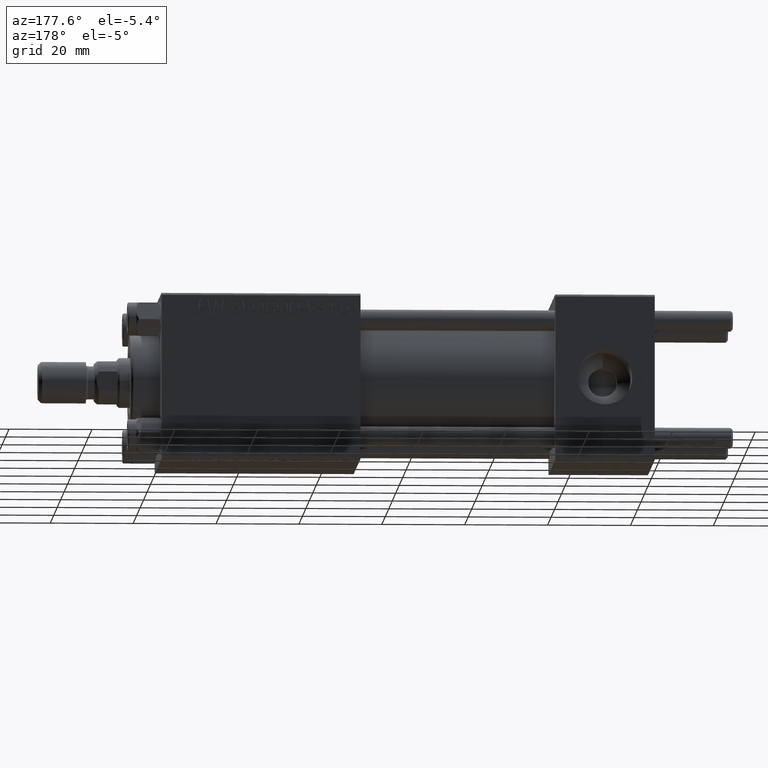
[diagram: clean part render]
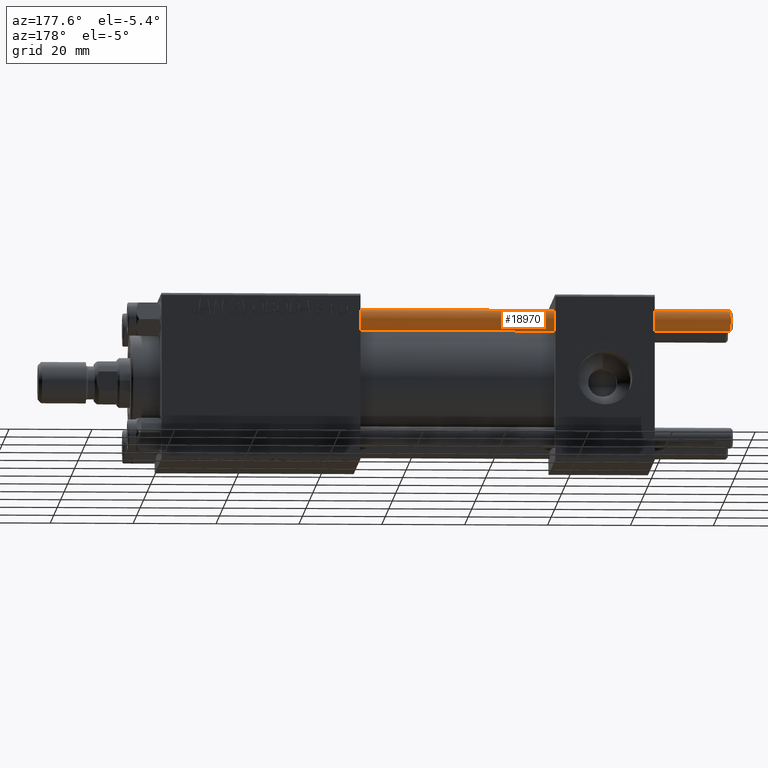
[diagram: same view with one face highlighted and labeled with its STEP entity id]
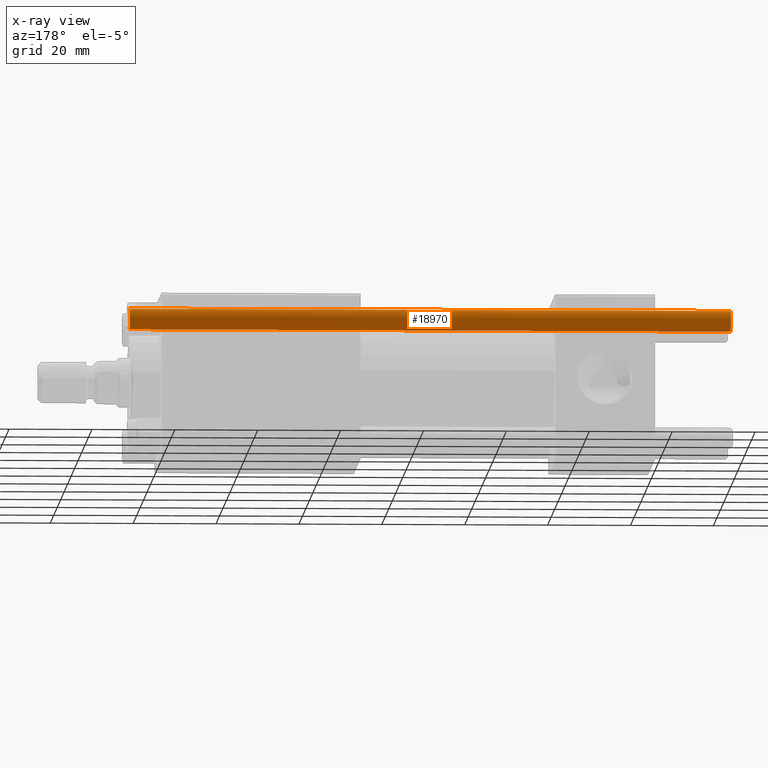
[diagram: x-ray of the same camera — body ghosted, the highlighted face saturated]
A machine part, auxiliary view. The second image highlights one B-rep face of the part: STEP entity #18970.
The next image is the same camera in x-ray: the body ghosted, the highlighted face saturated — about 0% of this face is hidden behind the body in this view.
In plain terms, the highlighted cylindrical surface (edge-blend (fillet) strip) has radius 2.5 mm, axis along (-1, -0, -0).
Its self-contained STEP definition (entity closure, byte-faithful):
#1331 = DIRECTION ( 'NONE',  ( -0.000000000000000000, -0.000000000000000000, -1.000000000000000000 ) ) ;
#1371 = CYLINDRICAL_SURFACE ( 'NONE', #33018, 2.500000000000000000 ) ;
#3114 = LINE ( 'NONE', #45664, #50081 ) ;
#3803 = CIRCLE ( 'NONE', #47740, 2.500000000000000000 ) ;
#4065 = ORIENTED_EDGE ( 'NONE', *, *, #30797, .T. ) ;
#5120 = CARTESIAN_POINT ( 'NONE',  ( -2.500000000000000000, 0.000000000000000000, 145.5000000000000284 ) ) ;
#7199 = DIRECTION ( 'NONE',  ( -0.000000000000000000, -0.000000000000000000, -1.000000000000000000 ) ) ;
#8975 = CARTESIAN_POINT ( 'NONE',  ( 2.500000000000000000, 3.061616997868383141E-16, 146.0000000000000000 ) ) ;
#9512 = DIRECTION ( 'NONE',  ( -1.000000000000000000, 0.000000000000000000, 0.000000000000000000 ) ) ;
#15731 = VERTEX_POINT ( 'NONE', #5120 ) ;
#18970 = ADVANCED_FACE ( 'NONE', ( #40109 ), #1371, .T. ) ;
#19693 = LINE ( 'NONE', #8975, #40713 ) ;
#22909 = AXIS2_PLACEMENT_3D ( 'NONE', #43124, #31683, #46192 ) ;
#25078 = CARTESIAN_POINT ( 'NONE',  ( 0.000000000000000000, 0.000000000000000000, 146.0000000000000000 ) ) ;
#26916 = CARTESIAN_POINT ( 'NONE',  ( 2.500000000000000000, 3.061616997868383141E-16, 0.5000000000000559552 ) ) ;
#27221 = CARTESIAN_POINT ( 'NONE',  ( 2.500000000000000000, 3.061616997868383141E-16, 145.5000000000000284 ) ) ;
#27576 = EDGE_CURVE ( 'NONE', #15731, #35179, #3114, .T. ) ;
#28274 = CARTESIAN_POINT ( 'NONE',  ( -2.500000000000000000, 0.000000000000000000, 0.5000000000000559552 ) ) ;
#28681 = ORIENTED_EDGE ( 'NONE', *, *, #43643, .T. ) ;
#30797 = EDGE_CURVE ( 'NONE', #15731, #35453, #3803, .T. ) ;
#31683 = DIRECTION ( 'NONE',  ( -0.000000000000000000, -0.000000000000000000, 1.000000000000000000 ) ) ;
#32702 = CARTESIAN_POINT ( 'NONE',  ( 0.000000000000000000, 0.000000000000000000, 145.5000000000000284 ) ) ;
#33018 = AXIS2_PLACEMENT_3D ( 'NONE', #25078, #47997, #9512 ) ;
#33054 = ORIENTED_EDGE ( 'NONE', *, *, #27576, .F. ) ;
#35179 = VERTEX_POINT ( 'NONE', #28274 ) ;
#35453 = VERTEX_POINT ( 'NONE', #27221 ) ;
#36369 = VERTEX_POINT ( 'NONE', #26916 ) ;
#39146 = CIRCLE ( 'NONE', #22909, 2.500000000000000000 ) ;
#39791 = ORIENTED_EDGE ( 'NONE', *, *, #45603, .T. ) ;
#40109 = FACE_OUTER_BOUND ( 'NONE', #41232, .T. ) ;
#40713 = VECTOR ( 'NONE', #1331, 1000.000000000000000 ) ;
#41232 = EDGE_LOOP ( 'NONE', ( #4065, #28681, #39791, #33054 ) ) ;
#43124 = CARTESIAN_POINT ( 'NONE',  ( 0.000000000000000000, 0.000000000000000000, 0.5000000000000559552 ) ) ;
#43643 = EDGE_CURVE ( 'NONE', #35453, #36369, #19693, .T. ) ;
#45603 = EDGE_CURVE ( 'NONE', #36369, #35179, #39146, .T. ) ;
#45664 = CARTESIAN_POINT ( 'NONE',  ( -2.500000000000000000, 0.000000000000000000, 146.0000000000000000 ) ) ;
#46192 = DIRECTION ( 'NONE',  ( 1.000000000000000000, 0.000000000000000000, 0.000000000000000000 ) ) ;
#47740 = AXIS2_PLACEMENT_3D ( 'NONE', #32702, #47980, #48228 ) ;
#47980 = DIRECTION ( 'NONE',  ( 0.000000000000000000, 0.000000000000000000, -1.000000000000000000 ) ) ;
#47997 = DIRECTION ( 'NONE',  ( -0.000000000000000000, -0.000000000000000000, -1.000000000000000000 ) ) ;
#48228 = DIRECTION ( 'NONE',  ( 1.000000000000000000, 0.000000000000000000, 0.000000000000000000 ) ) ;
#50081 = VECTOR ( 'NONE', #7199, 1000.000000000000000 ) ;